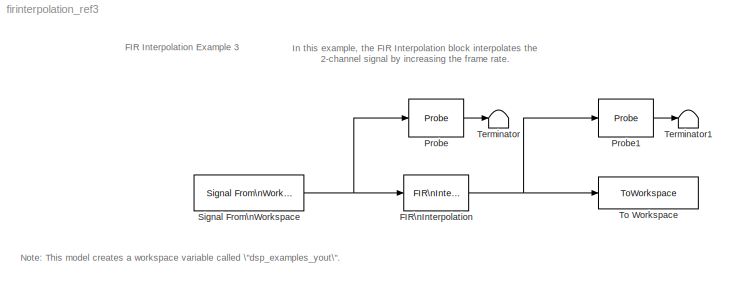
MODEL firinterpolation_ref3
KIND model
CONFIG AbsTol = auto
CONFIG FixedStep = auto
CONFIG MaxStep = auto
CONFIG MinStep = auto
CONFIG PostLoadFcn = set_param(gcs,'SimulationCommand','Update')
CONFIG RelTol = 1e-3
CONFIG Solver = FixedStepDiscrete
CONFIG SolverMode = MultiTasking
CONFIG StartTime = 0.0
CONFIG StopTime = 30
BLOCK [Reference] FIR\nInterpolation  REF=dspmlti3/FIR\nInterpolation
  L = 2
  Ports = [1, 1]
  SourceBlock = dspmlti3/FIR\nInterpolation
  SourceType = FIR Interpolation
  framing = Maintain input frame size
  h = fir1(3,0.25)
BLOCK [Probe] Probe
  Ports = [1, 1]
  ProbeComplexSignal = off
  ProbeSampleTime = on
  ProbeSignalDimensions = off
  ProbeWidth = off
BLOCK [Probe] Probe1
  Ports = [1, 1]
  ProbeComplexSignal = off
  ProbeSampleTime = on
  ProbeSignalDimensions = off
  ProbeWidth = off
BLOCK [Reference] Signal From\nWorkspace  REF=dspsrcs3/Signal From\nWorkspace
  OutputAfterFinalValue = Setting To Zero
  Ports = [0, 1]
  SourceBlock = dspsrcs3/Signal From\nWorkspace
  SourceType = Signal From Workspace
  Ts = 0.25
  X = [(1:100)' (-1:-1:-100)']
  nsamps = 4
BLOCK [Terminator] Terminator
BLOCK [Terminator] Terminator1
BLOCK [ToWorkspace] To Workspace
  Decimation = 1
  MaxDataPoints = inf
  SampleTime = -1
  SaveFormat = Array
  VariableName = dsp_examples_yout
NET FIR\nInterpolation:1 -> Probe1:1, To Workspace:1
LINE Probe1:1 -> Terminator1:1
LINE Probe:1 -> Terminator:1
NET Signal From\nWorkspace:1 -> FIR\nInterpolation:1, Probe:1
note: NET lines group one-source signal fan-out (src -> all destinations, sorted); 1:1 wires keep LINE
